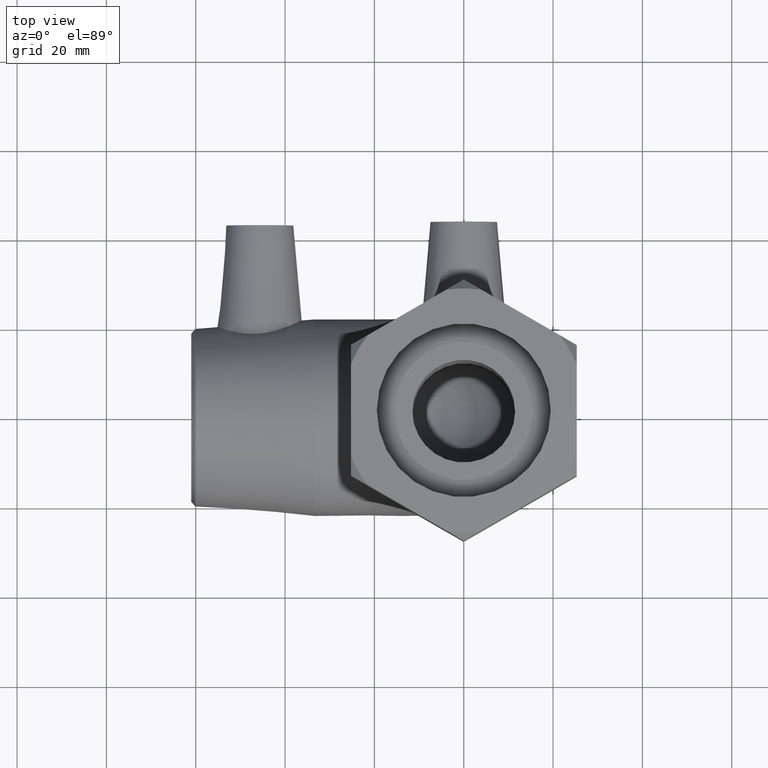
[diagram: clean part render]
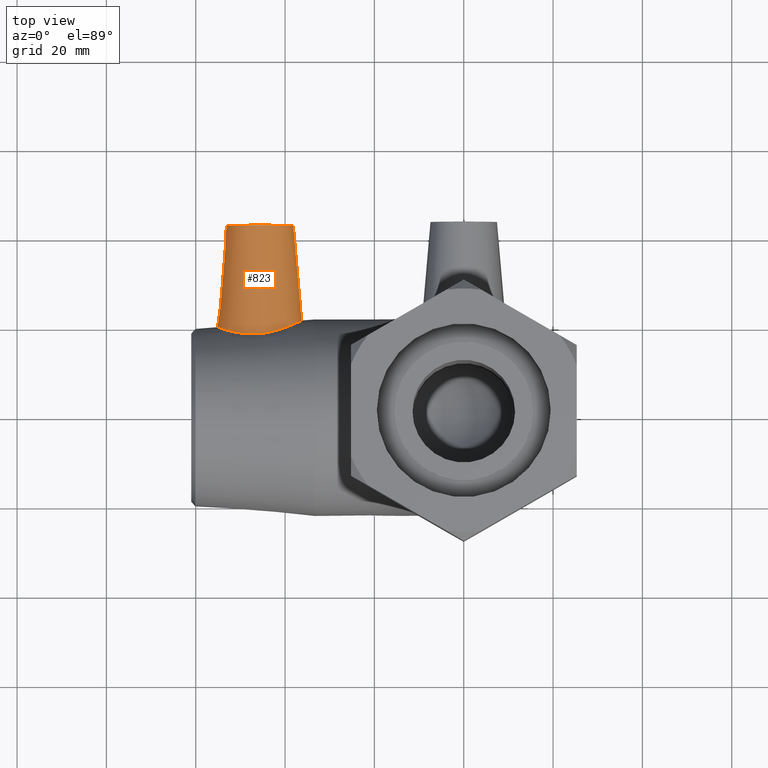
[diagram: same view with one face highlighted and labeled with its STEP entity id]
A machine part, top view. The second image highlights one B-rep face of the part: STEP entity #823.
In plain terms, the highlighted conical surface has half-angle 5 deg.
Its self-contained STEP definition (entity closure, byte-faithful):
#17=B_SPLINE_CURVE_WITH_KNOTS('',3,(#1391,#1392,#1393,#1394,#1395,#1396,
#1397,#1398,#1399,#1400,#1401,#1402,#1403,#1404,#1405,#1406,#1407,#1408,
#1409,#1410,#1411,#1412,#1413,#1414,#1415,#1416,#1417,#1418,#1419,#1420,
#1421,#1422,#1423,#1424),.UNSPECIFIED.,.T.,.F.,(4,2,2,2,2,2,2,2,2,2,2,2,
2,2,2,2,4),(0.,0.352700193411278,0.705400386822555,1.06065997794798,1.4159195690734,
1.77117916019882,2.12643875132425,2.47913894473552,2.8318391381468,3.21426147151368,
3.59668380488056,3.96833233978789,4.33998087469521,4.71162940960254,5.08327794450986,
5.46570027787674,5.84812261124363),.UNSPECIFIED.);
#155=FACE_BOUND('',#316,.T.);
#216=FACE_OUTER_BOUND('',#315,.T.);
#315=EDGE_LOOP('',(#735));
#316=EDGE_LOOP('',(#736));
#373=CIRCLE('',#938,7.5);
#426=VERTEX_POINT('',#1390);
#451=VERTEX_POINT('',#1559);
#522=EDGE_CURVE('',#426,#426,#17,.T.);
#548=EDGE_CURVE('',#451,#451,#373,.T.);
#735=ORIENTED_EDGE('',*,*,#548,.T.);
#736=ORIENTED_EDGE('',*,*,#522,.F.);
#764=CONICAL_SURFACE('',#939,7.5,5.);
#823=ADVANCED_FACE('',(#216,#155),#764,.T.);
#938=AXIS2_PLACEMENT_3D('',#1560,#1178,#1179);
#939=AXIS2_PLACEMENT_3D('',#1561,#1180,#1181);
#1178=DIRECTION('center_axis',(0.,-1.,0.));
#1179=DIRECTION('ref_axis',(1.,0.,0.));
#1180=DIRECTION('center_axis',(0.,-1.,0.));
#1181=DIRECTION('ref_axis',(1.,0.,0.));
#1390=CARTESIAN_POINT('',(-46.0602682614864,18.6527359345863,9.62136636545365));
#1391=CARTESIAN_POINT('Ctrl Pts',(-46.0602682614863,18.6527359345863,9.62136636545365));
#1392=CARTESIAN_POINT('Ctrl Pts',(-47.2322361625234,18.5699124519759,9.57864474688506));
#1393=CARTESIAN_POINT('Ctrl Pts',(-48.4680337026871,18.6113538782614,9.29477438840325));
#1394=CARTESIAN_POINT('Ctrl Pts',(-50.7113065030737,18.8985129488541,8.26038237665403));
#1395=CARTESIAN_POINT('Ctrl Pts',(-51.7203517807895,19.1349894938284,7.51072157983028));
#1396=CARTESIAN_POINT('Ctrl Pts',(-53.3069823604728,19.5832493329027,5.82233956886021));
#1397=CARTESIAN_POINT('Ctrl Pts',(-53.9955728954431,19.8268123115242,4.76196036847415));
#1398=CARTESIAN_POINT('Ctrl Pts',(-54.9119048959261,20.1704598428399,2.44335638516368));
#1399=CARTESIAN_POINT('Ctrl Pts',(-55.1389621646109,20.266058430284,1.18419863708474));
#1400=CARTESIAN_POINT('Ctrl Pts',(-55.1389621646109,20.266058430284,-1.18419863708474));
#1401=CARTESIAN_POINT('Ctrl Pts',(-54.9119048959261,20.1704598428399,-2.44335638516368));
#1402=CARTESIAN_POINT('Ctrl Pts',(-53.9955728954431,19.8268123115242,-4.76196036847415));
#1403=CARTESIAN_POINT('Ctrl Pts',(-53.3069823604728,19.5832493329027,-5.82233956886021));
#1404=CARTESIAN_POINT('Ctrl Pts',(-51.7203517807895,19.1349894938284,-7.51072157983028));
#1405=CARTESIAN_POINT('Ctrl Pts',(-50.7113065030737,18.8985129488541,-8.26038237665403));
#1406=CARTESIAN_POINT('Ctrl Pts',(-48.4680337026871,18.6113538782614,-9.29477438840325));
#1407=CARTESIAN_POINT('Ctrl Pts',(-47.2322361625234,18.5699124519759,-9.57864474688506));
#1408=CARTESIAN_POINT('Ctrl Pts',(-44.7895383108989,18.7425389743044,-9.66768814628454));
#1409=CARTESIAN_POINT('Ctrl Pts',(-43.4602629554652,18.9862188514755,-9.43829136894649));
#1410=CARTESIAN_POINT('Ctrl Pts',(-41.04422898226,19.651715607722,-8.45864045551373));
#1411=CARTESIAN_POINT('Ctrl Pts',(-39.9545419235782,20.0639278337078,-7.70910972441213));
#1412=CARTESIAN_POINT('Ctrl Pts',(-38.258689345906,20.7794201420516,-5.99733090427889));
#1413=CARTESIAN_POINT('Ctrl Pts',(-37.5252883473859,21.134551763808,-4.92433911740575));
#1414=CARTESIAN_POINT('Ctrl Pts',(-36.5414476064506,21.6294602695051,-2.54579354816424));
#1415=CARTESIAN_POINT('Ctrl Pts',(-36.2921537597489,21.7647203034417,-1.23882844969108));
#1416=CARTESIAN_POINT('Ctrl Pts',(-36.2921537597489,21.7647203034417,1.23882844969108));
#1417=CARTESIAN_POINT('Ctrl Pts',(-36.5414476064506,21.6294602695051,2.54579354816424));
#1418=CARTESIAN_POINT('Ctrl Pts',(-37.5252883473859,21.134551763808,4.92433911740575));
#1419=CARTESIAN_POINT('Ctrl Pts',(-38.258689345906,20.7794201420516,5.99733090427889));
#1420=CARTESIAN_POINT('Ctrl Pts',(-39.9545419235782,20.0639278337078,7.70910972441213));
#1421=CARTESIAN_POINT('Ctrl Pts',(-41.04422898226,19.651715607722,8.45864045551372));
#1422=CARTESIAN_POINT('Ctrl Pts',(-43.4602629554652,18.9862188514755,9.43829136894648));
#1423=CARTESIAN_POINT('Ctrl Pts',(-44.7895383108988,18.7425389743044,9.66768814628455));
#1424=CARTESIAN_POINT('Ctrl Pts',(-46.0602682614863,18.6527359345863,9.62136636545365));
#1559=CARTESIAN_POINT('',(-53.15,43.,9.18485099360515E-16));
#1560=CARTESIAN_POINT('Origin',(-45.65,43.,0.));
#1561=CARTESIAN_POINT('Origin',(-45.65,43.,0.));